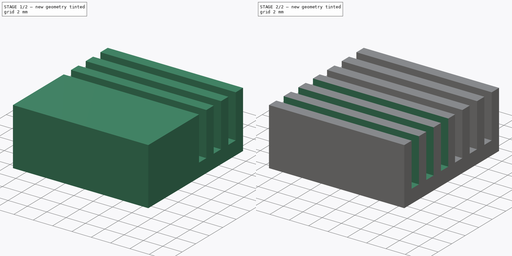
[diagram: build sequence overview — one tinted view per stage of 2, left to right]
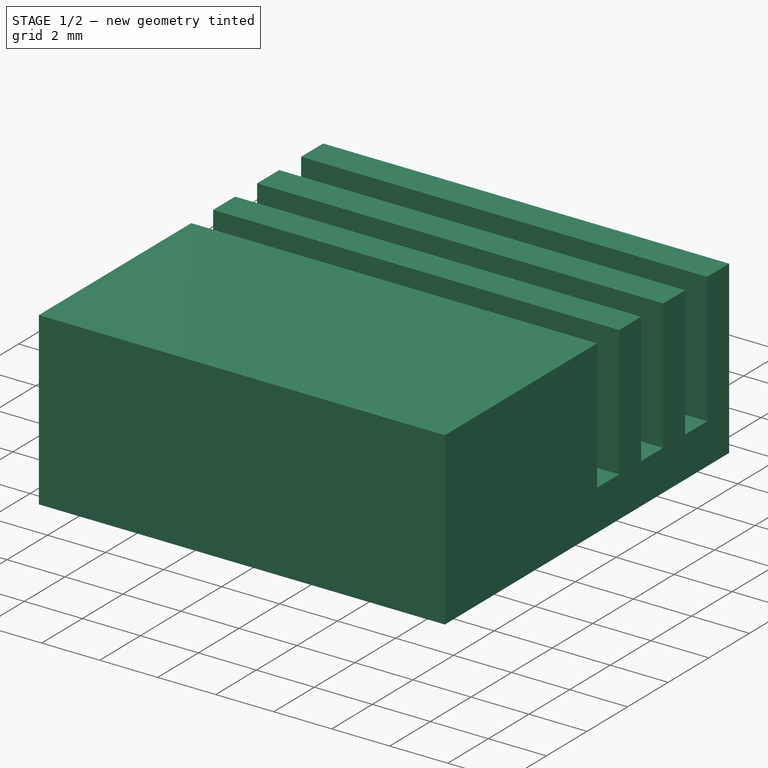
[diagram: stage 1 of 2 — iso view after this stage's code; geometry added in this stage tinted green]
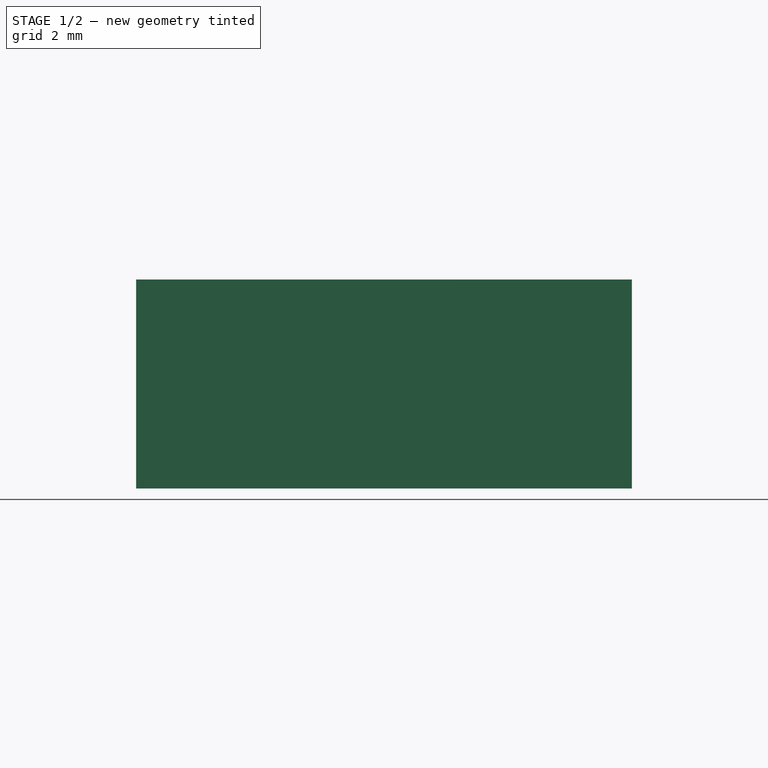
[diagram: stage 1 of 2 — front view after this stage's code; geometry added in this stage tinted green]
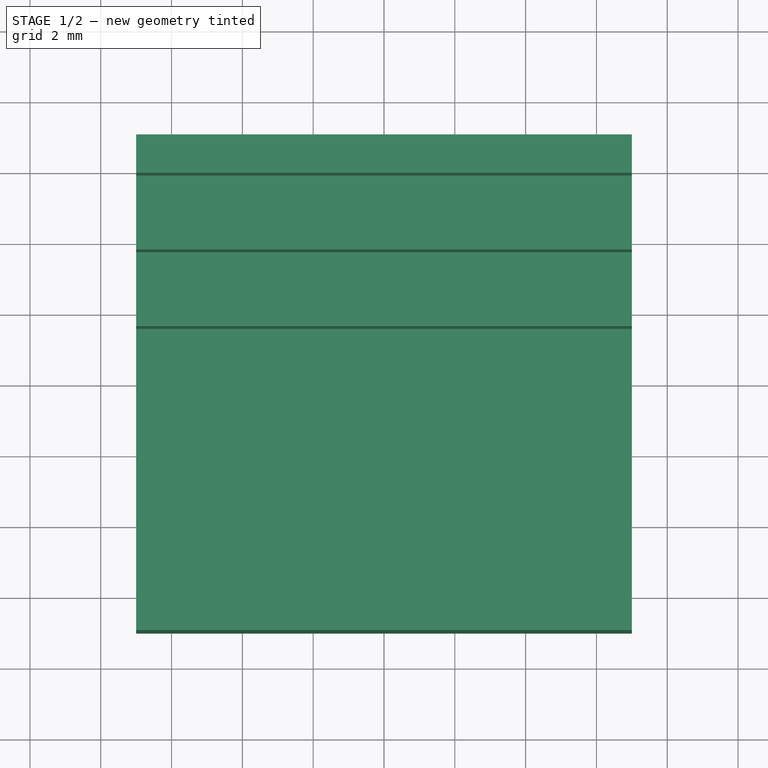
[diagram: stage 1 of 2 — top view after this stage's code; geometry added in this stage tinted green]
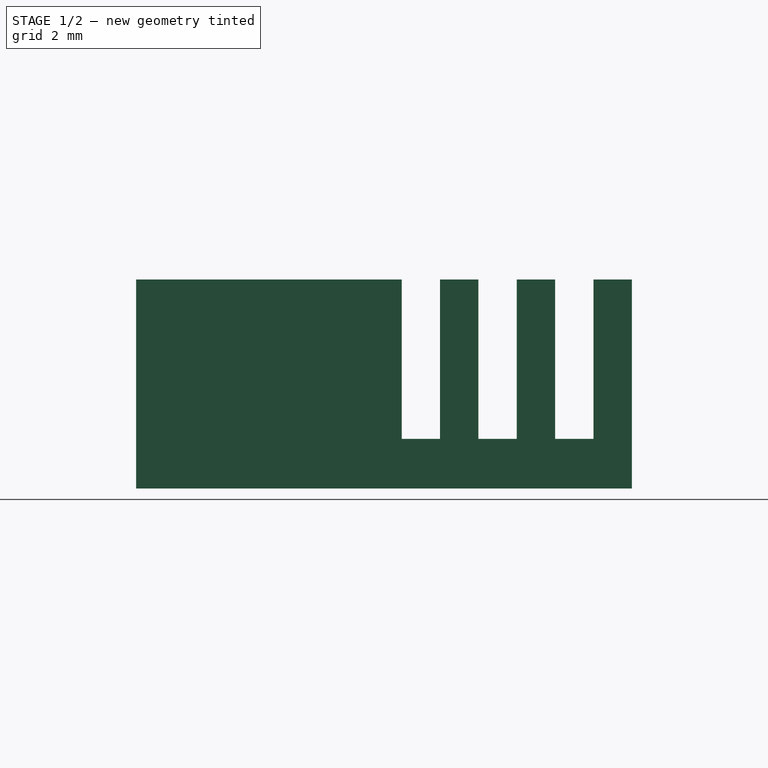
[diagram: stage 1 of 2 — right view after this stage's code; geometry added in this stage tinted green]
FCSTD DOCUMENT  (FreeCAD 0.18.4R)
Label: heatsink
License: All rights reserved
LicenseURL: http://en.wikipedia.org/wiki/All_rights_reserved
objects: Sketcher::SketchObject×2, PartDesign::Pad×1, PartDesign::Pocket×1, PartDesign::Mirrored×1, PartDesign::Body×1
note: 8 computed .brp shape members not serialized (recipe doc carries the construction recipe); baked Part::Feature solids carry a one-line shape summary decoded from their .brp

FEATURE [Sketcher::SketchObject] Sketch
  MapMode = 5
  Support = -> [XY_Plane]
  sketch-geometry (6):
    g0: LineSegment StartX=-7 StartY=-7 StartZ=0 EndX=7 EndY=-7 EndZ=0
    g1: LineSegment StartX=7 StartY=-7 StartZ=0 EndX=7 EndY=7 EndZ=0
    g2: LineSegment StartX=7 StartY=7 StartZ=0 EndX=-7 EndY=7 EndZ=0
    g3: LineSegment StartX=-7 StartY=7 StartZ=0 EndX=-7 EndY=-7 EndZ=0
    g4: LineSegment [constr] StartX=-7 StartY=7 StartZ=0 EndX=7 EndY=-7 EndZ=0
    g5: LineSegment [constr] StartX=7 StartY=7 StartZ=0 EndX=-7 EndY=-7 EndZ=0
  constraints (16):
    c: Coincident(g0,g1)
    c: Coincident(g1,g2)
    c: Coincident(g2,g3)
    c: Coincident(g3,g0)
    c: Horizontal(g0)
    c: Horizontal(g2)
    c: Vertical(g1)
    c: Vertical(g3)
    c: Coincident(g4,g2)
    c: Coincident(g4,g0)
    c: Coincident(g5,g1)
    c: Coincident(g5,g0)
    c: PointOnObject(g-1,g5)
    c: PointOnObject(g-1,g4)
    c: Equal(g2,g3)
    c: Distance(g2) = 14
FEATURE [PartDesign::Pad] Pad
  Length = 5.9
  Length2 = 100
  Profile = -> Sketch
  Type = 0
FEATURE [Sketcher::SketchObject] Sketch001
  ExternalGeometry = -> [Pad]
  MapMode = 5
  Placement = pos=(7,0,0) rot=(0.57735,0.57735,0.57735;2.0944rad)
  Support = -> [Pad]
  sketch-geometry (16):
    g0: LineSegment StartX=0 StartY=6.9 StartZ=0 EndX=7 EndY=6.9 EndZ=0
    g1: LineSegment StartX=7 StartY=6.9 StartZ=0 EndX=7 EndY=5.9 EndZ=0
    g2: LineSegment StartX=7 StartY=5.9 StartZ=0 EndX=5.91667 EndY=5.9 EndZ=0
    g3: LineSegment StartX=5.91667 StartY=5.9 StartZ=0 EndX=5.91667 EndY=1.4 EndZ=0
    g4: LineSegment StartX=5.91667 StartY=1.4 StartZ=0 EndX=4.83333 EndY=1.4 EndZ=0
    g5: LineSegment StartX=4.83333 StartY=1.4 StartZ=0 EndX=4.83333 EndY=5.9 EndZ=0
    g6: LineSegment StartX=4.83333 StartY=5.9 StartZ=0 EndX=3.75 EndY=5.9 EndZ=0
    g7: LineSegment StartX=3.75 StartY=5.9 StartZ=0 EndX=3.75 EndY=1.4 EndZ=0
    g8: LineSegment StartX=3.75 StartY=1.4 StartZ=0 EndX=2.66667 EndY=1.4 EndZ=0
    g9: LineSegment StartX=2.66667 StartY=1.4 StartZ=0 EndX=2.66667 EndY=5.9 EndZ=0
    g10: LineSegment StartX=2.66667 StartY=5.9 StartZ=0 EndX=1.58333 EndY=5.9 EndZ=0
    g11: LineSegment StartX=1.58333 StartY=5.9 StartZ=0 EndX=1.58333 EndY=1.4 EndZ=0
    g12: LineSegment StartX=1.58333 StartY=1.4 StartZ=0 EndX=0.5 EndY=1.4 EndZ=0
    g13: LineSegment StartX=0.5 StartY=1.4 StartZ=0 EndX=0.5 EndY=5.9 EndZ=0
    g14: LineSegment StartX=0.5 StartY=5.9 StartZ=0 EndX=0 EndY=5.9 EndZ=0
    g15: LineSegment StartX=0 StartY=5.9 StartZ=0 EndX=0 EndY=6.9 EndZ=0
  constraints (47):
    c: Horizontal(g0)
    c: Coincident(g0,g1)
    c: Coincident(g1,g-4)
    c: Vertical(g1)
    c: Coincident(g1,g2)
    c: Coincident(g2,g3)
    c: Vertical(g3)
    c: Coincident(g3,g4)
    c: Horizontal(g4)
    c: Coincident(g4,g5)
    c: Vertical(g5)
    c: Coincident(g5,g6)
    c: Horizontal(g6)
    c: Coincident(g6,g7)
    c: Vertical(g7)
    c: Coincident(g7,g8)
    c: Horizontal(g8)
    c: Coincident(g8,g9)
    c: Vertical(g9)
    c: Coincident(g9,g10)
    c: Horizontal(g10)
    c: Coincident(g10,g11)
    c: Vertical(g11)
    c: Coincident(g11,g12)
    c: Coincident(g12,g13)
    c: Vertical(g13)
    c: Coincident(g13,g14)
    c: PointOnObject(g14,g-2)
    c: Coincident(g14,g15)
    c: Vertical(g15)
    c: Coincident(g0,g15)
    c: Horizontal(g14)
    c: PointOnObject(g1,g14)
    c: PointOnObject(g1,g10)
    c: PointOnObject(g1,g6)
    c: Horizontal(g2)
    c: Horizontal(g12)
    c: Distance(g1) = 1
    c: Equal(g2,g6)
    c: Equal(g6,g10)
    c: Equal(g12,g8)
    c: Equal(g8,g4)
    c: Distance(g14) = 0.5
    c: Distance(g13) = 4.5
    c: PointOnObject(g4,g12)
    c: PointOnObject(g8,g12)
    c: Equal(g12,g10)
FEATURE [PartDesign::Pocket] Pocket
  BaseFeature = -> Pad
  Length = 5
  Length2 = 100
  Profile = -> Sketch001
  Type = 1
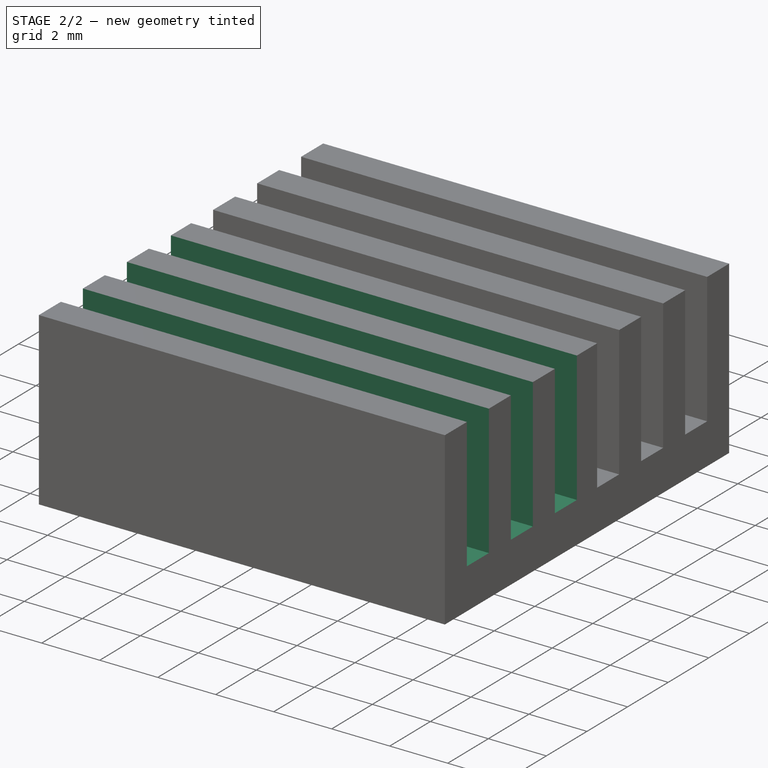
[diagram: stage 2 of 2 — iso view after this stage's code; geometry added in this stage tinted green]
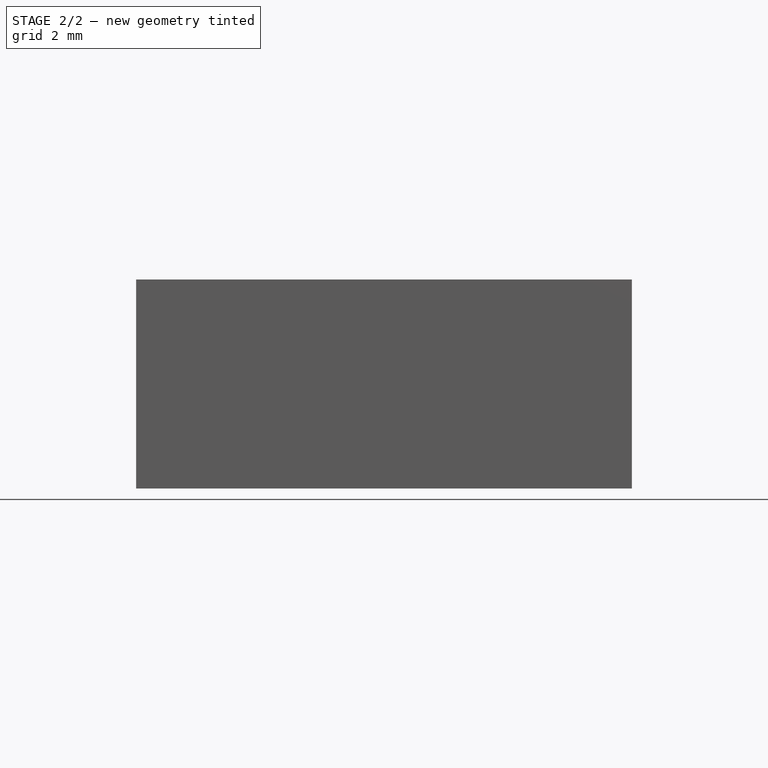
[diagram: stage 2 of 2 — front view after this stage's code; geometry added in this stage tinted green]
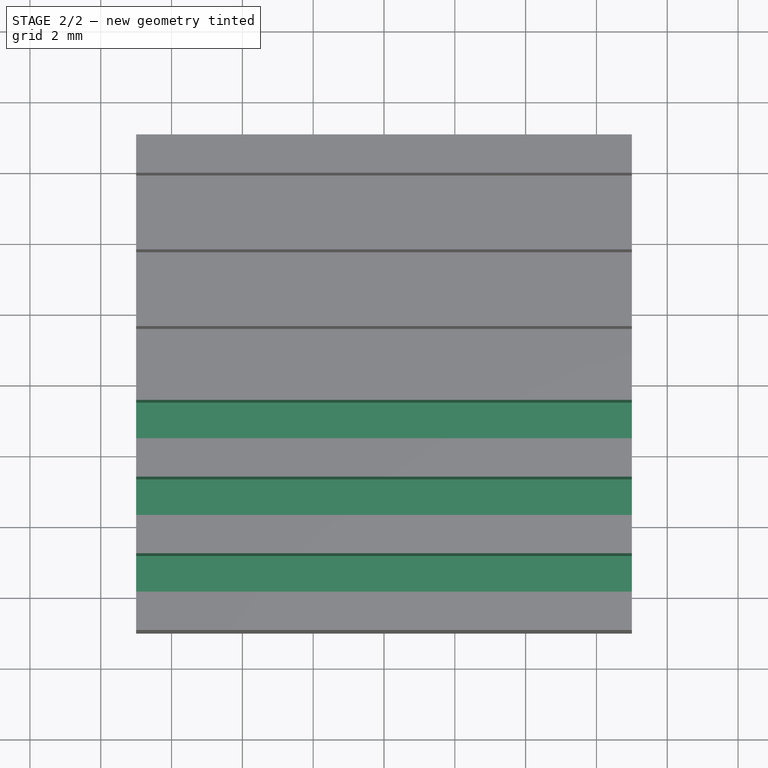
[diagram: stage 2 of 2 — top view after this stage's code; geometry added in this stage tinted green]
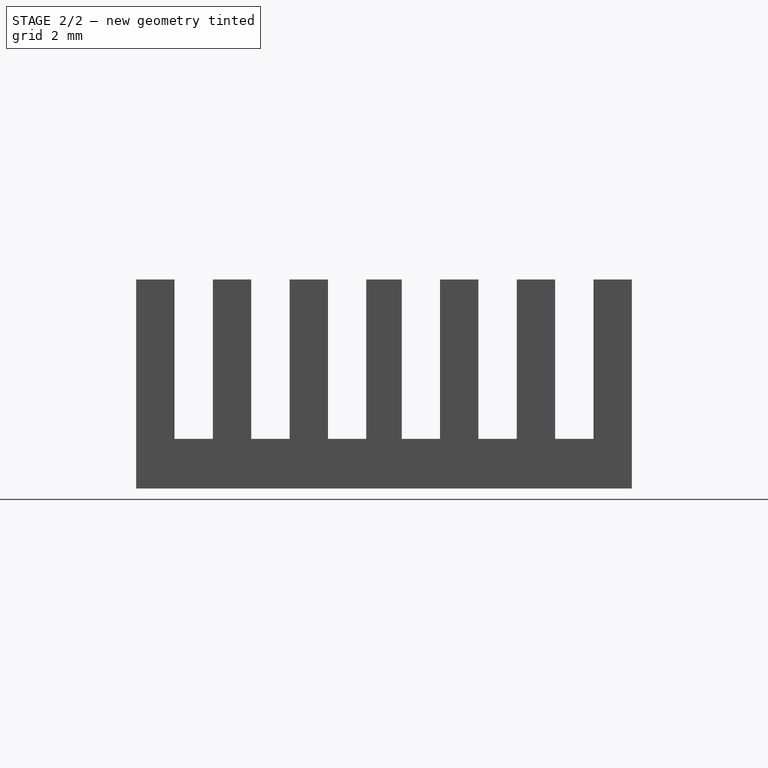
[diagram: stage 2 of 2 — right view after this stage's code; geometry added in this stage tinted green]
FEATURE [PartDesign::Mirrored] Mirrored
  BaseFeature = -> Pocket
  MirrorPlane = -> XZ_Plane
  Originals = -> [Pocket]
FEATURE [PartDesign::Body] Body
  Group = -> [Sketch,Pad,Sketch001,Pocket,Mirrored]
  Origin = -> Origin
  Tip = -> Mirrored
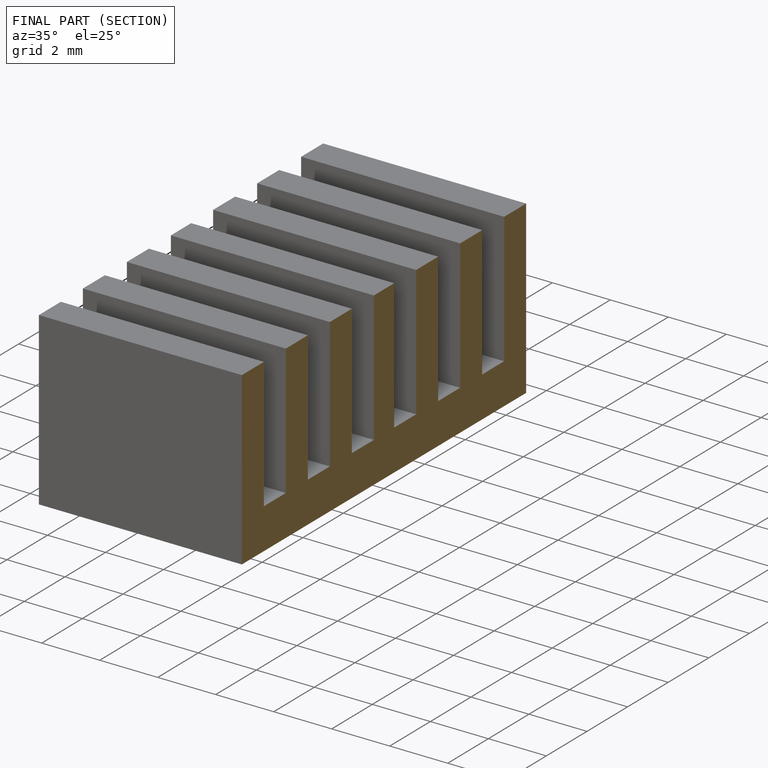
[diagram: finished part — half-section view (interior)]
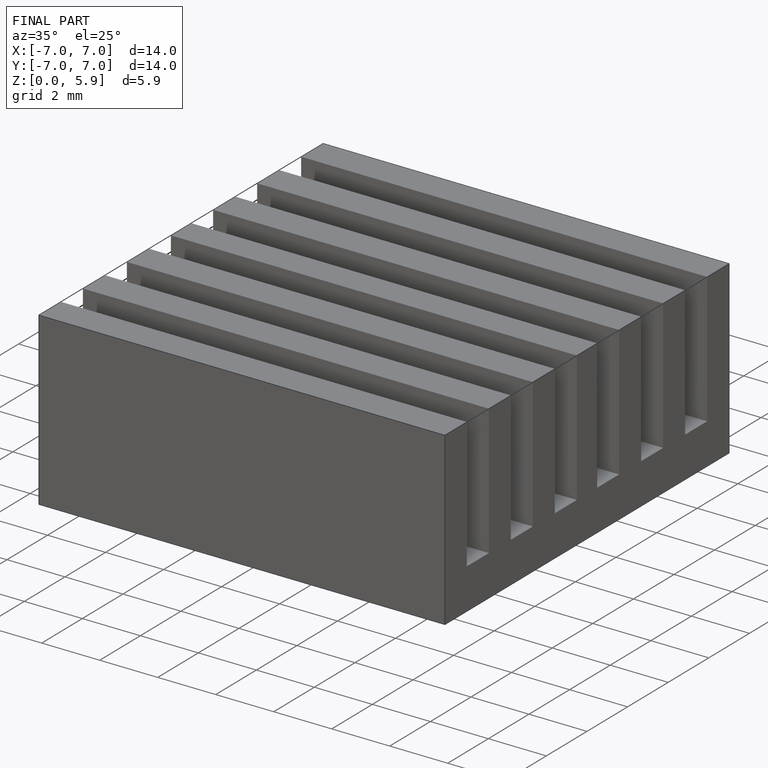
[diagram: finished part — iso view with bounding-box wireframe]
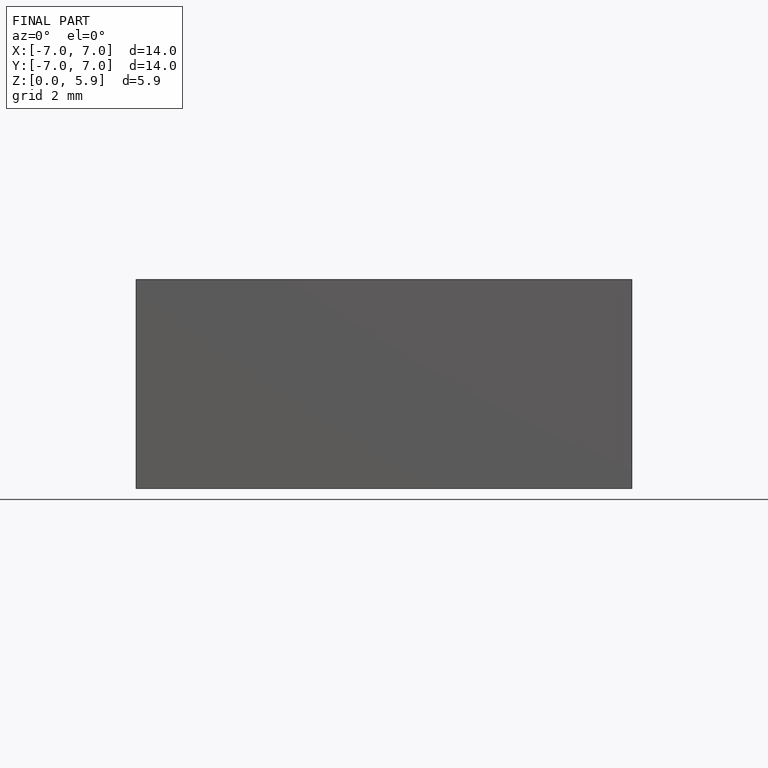
[diagram: finished part — front view with bounding-box wireframe]
